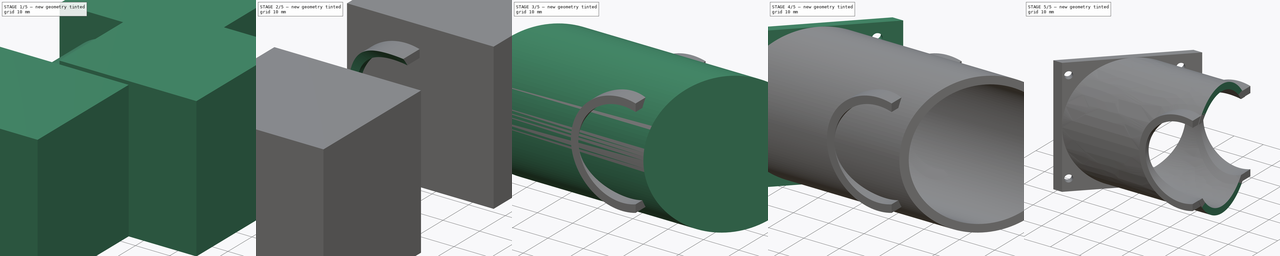
[diagram: build sequence overview — one tinted view per stage of 5, left to right]
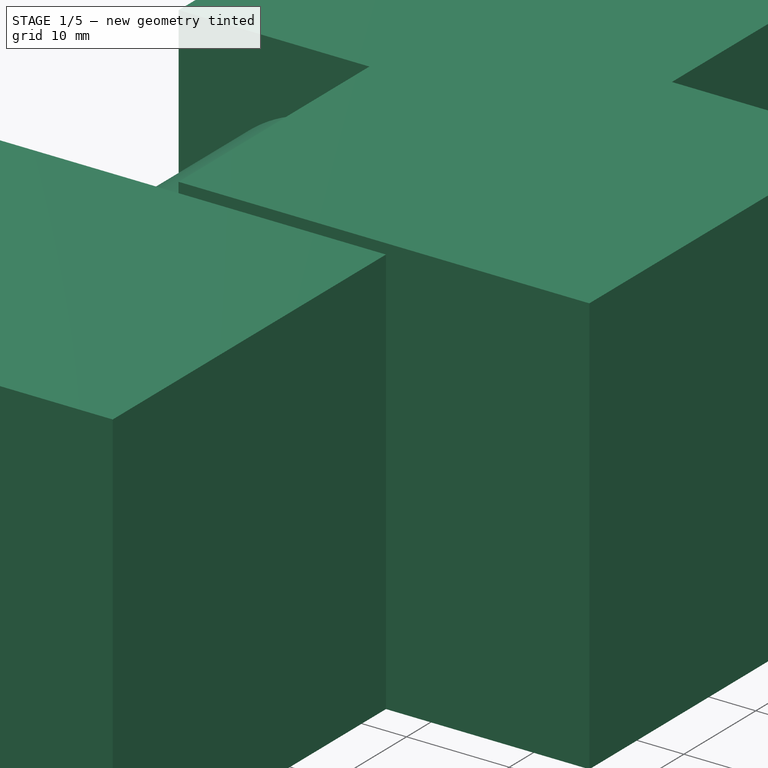
[diagram: stage 1 of 5 — iso view after this stage's code; geometry added in this stage tinted green]
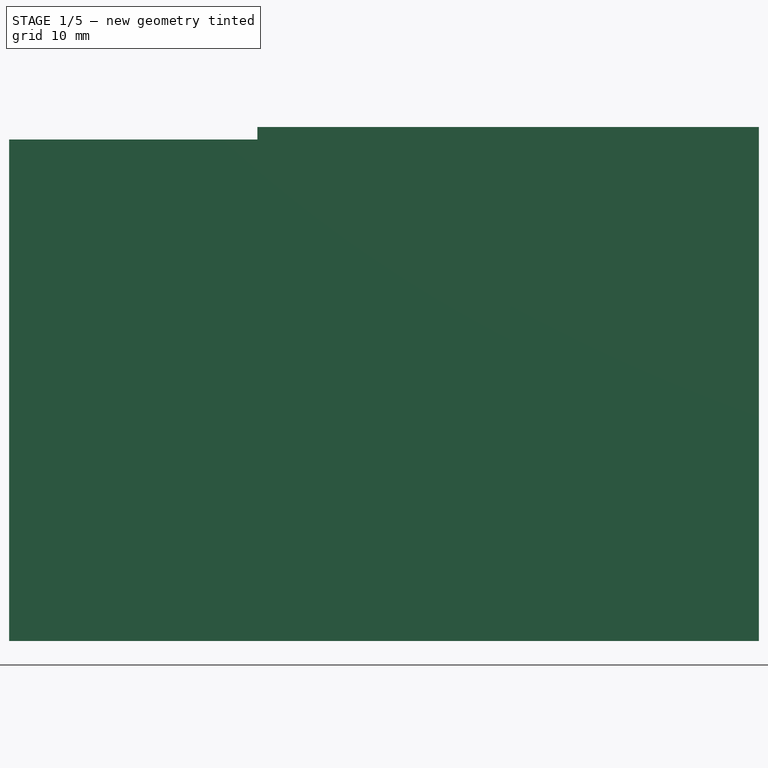
[diagram: stage 1 of 5 — front view after this stage's code; geometry added in this stage tinted green]
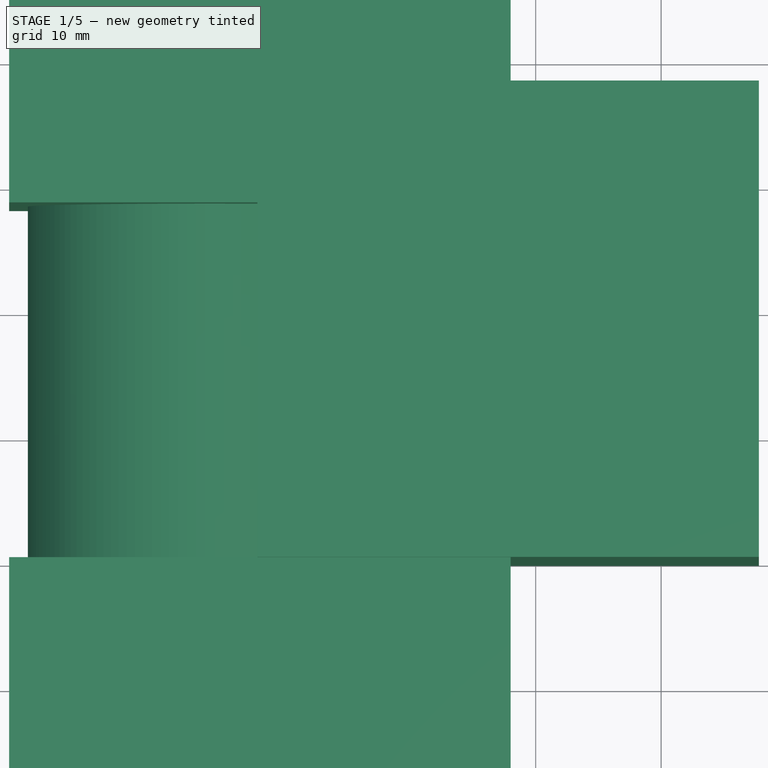
[diagram: stage 1 of 5 — top view after this stage's code; geometry added in this stage tinted green]
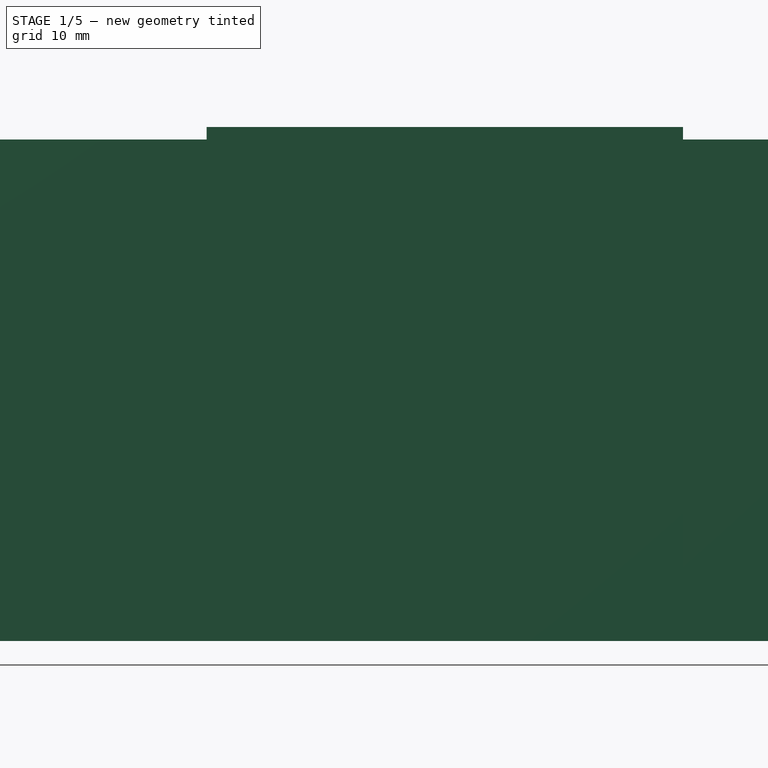
[diagram: stage 1 of 5 — right view after this stage's code; geometry added in this stage tinted green]
FCSTD DOCUMENT  (FreeCAD 0.14R3702 (Git))
Label: uchwyt-wentylator-v2
License: CC-BY 3.0
LicenseURL: http://creativecommons.org/licenses/by/3.0/
objects: Part::Cut×9, Part::Extrusion×8, Sketcher::SketchObject×4, Part::Box×4, Part::Cylinder×3, Part::MultiFuse×3
note: 31 computed .brp shape members not serialized (recipe doc carries the construction recipe); baked Part::Feature solids carry a one-line shape summary decoded from their .brp

FEATURE [Part::Cylinder] Cylinder002
  Angle = 360
  Height = 50
  Placement = pos=(44,38,20) rot=(1,0,0;1.5708rad)
  Radius = 14.5
FEATURE [Part::Box] Box001  label="Kostka001"
  Height = 41
  Length = 40
  Placement = pos=(47.8,0,0) rot=(0,0,1;0rad)
  Width = 38
FEATURE [Part::Box] Box002  label="Kostka002"
  Height = 40
  Length = 40
  Placement = pos=(28,-38,0) rot=(0,0,1;0rad)
  Width = 38
FEATURE [Part::Box] Box003  label="Kostka003"
  Height = 40
  Length = 40
  Placement = pos=(28,28.3,0) rot=(0,0,1;0rad)
  Width = 38
FEATURE [Part::MultiFuse] Fusion001
  Shapes = -> [Box002,Box003]
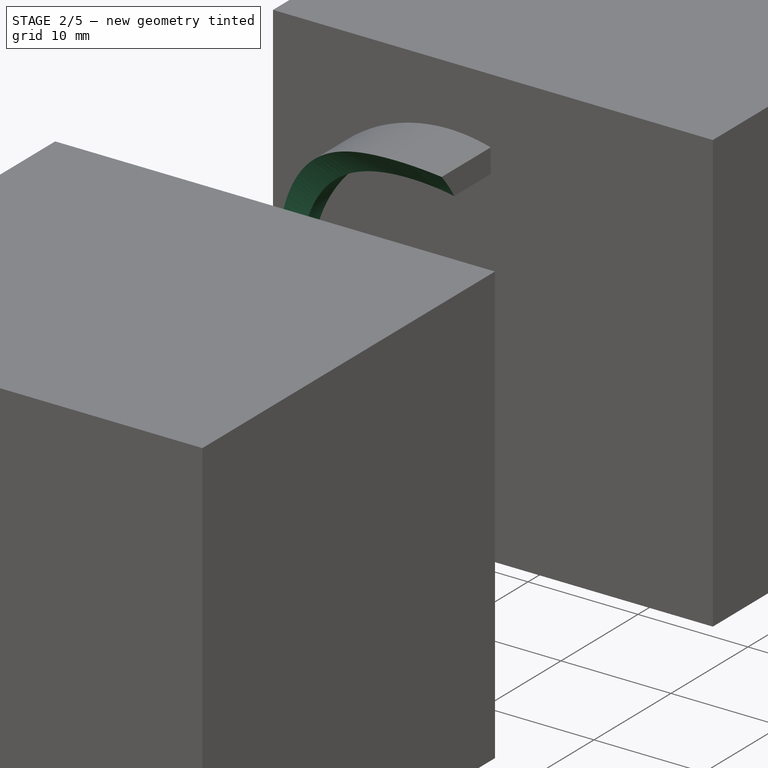
[diagram: stage 2 of 5 — iso view after this stage's code; geometry added in this stage tinted green]
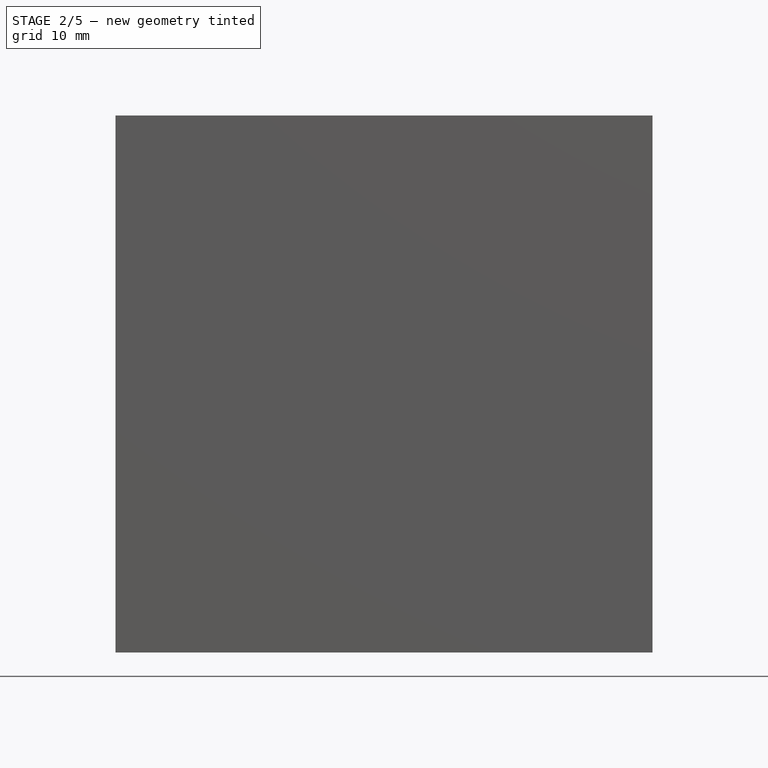
[diagram: stage 2 of 5 — front view after this stage's code; geometry added in this stage tinted green]
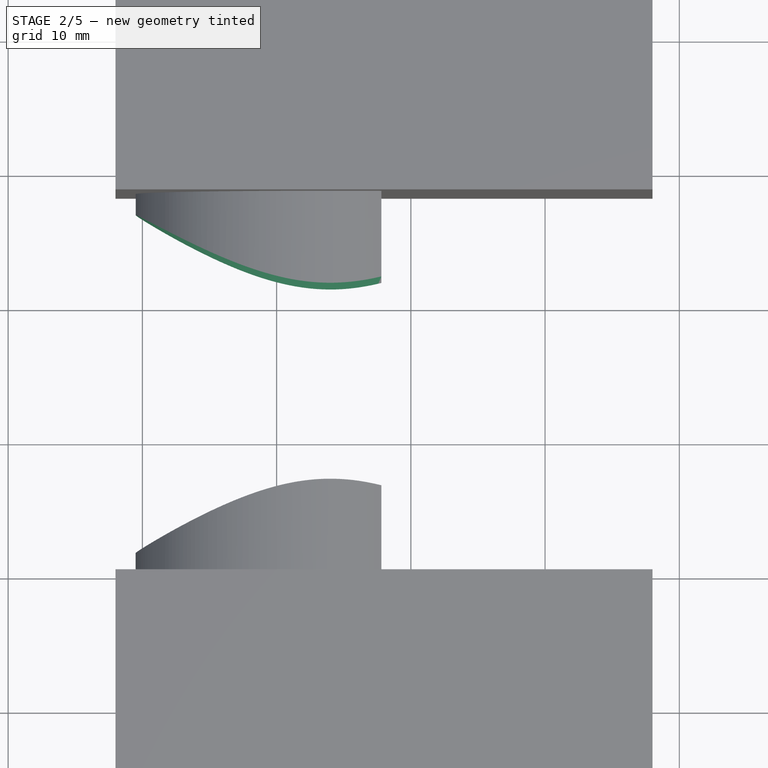
[diagram: stage 2 of 5 — top view after this stage's code; geometry added in this stage tinted green]
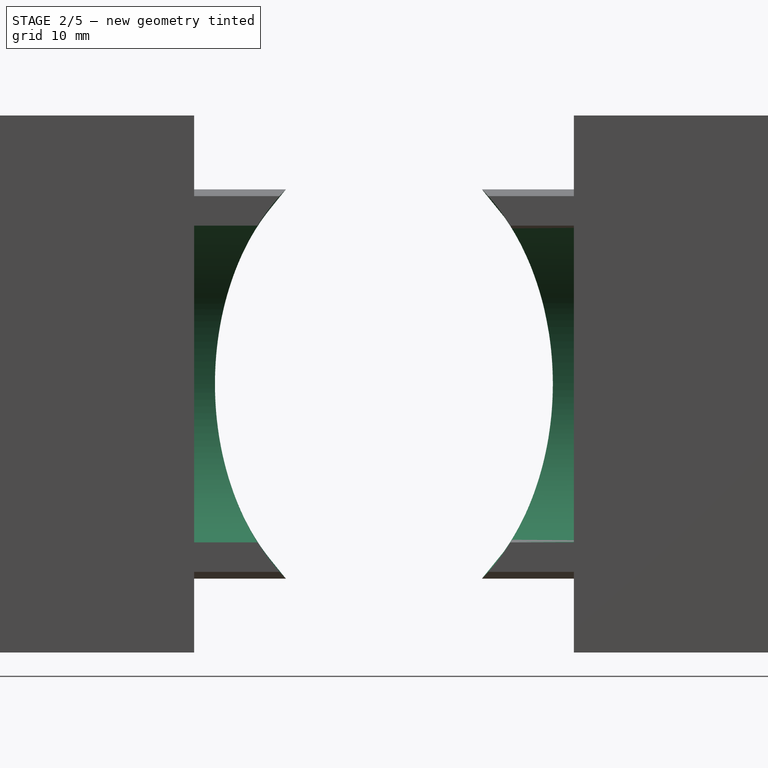
[diagram: stage 2 of 5 — right view after this stage's code; geometry added in this stage tinted green]
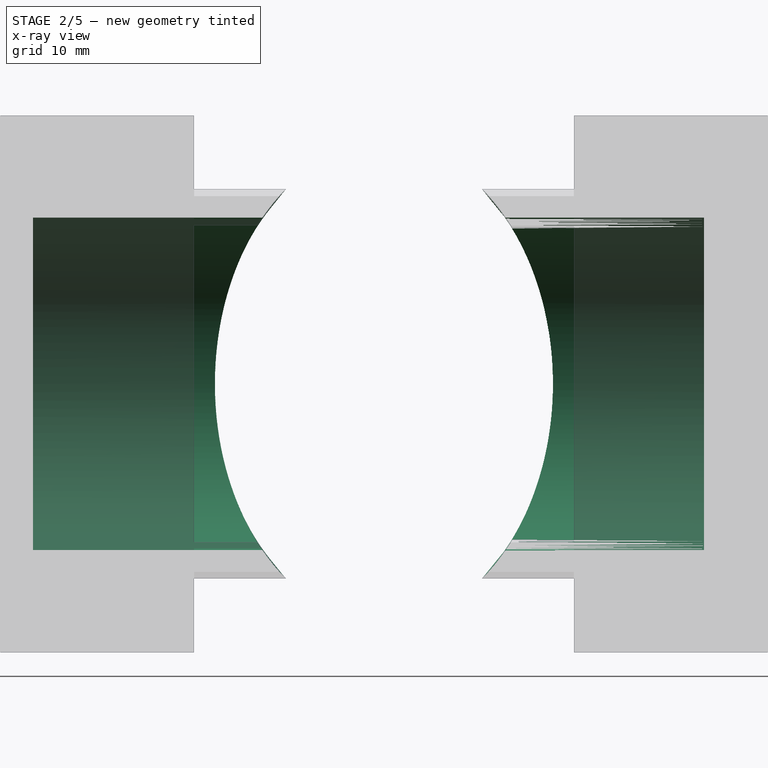
[diagram: stage 2 of 5 — x-ray composite at the right view; earlier geometry ghosted, this stage's added geometry solid]
FEATURE [Part::Extrusion] Extrude
  Dir = (0,0,40)
  Solid = true
FEATURE [Part::Cylinder] Cylinder001
  Angle = 360
  Height = 50
  Placement = pos=(44,38,20) rot=(1,0,0;1.5708rad)
  Radius = 12.4
FEATURE [Part::Cut] Cut005
  Base = -> Cylinder002
  Tool = -> Cylinder001
FEATURE [Part::Extrusion] Extrude008
  Base = -> Sketch
  Dir = (50,0,0)
  Solid = true
FEATURE [Part::Cut] Cut006
  Base = -> Cut005
  Tool = -> Box001
FEATURE [Part::Cut] Cut007
  Base = -> Cut006
  Tool = -> Extrude008
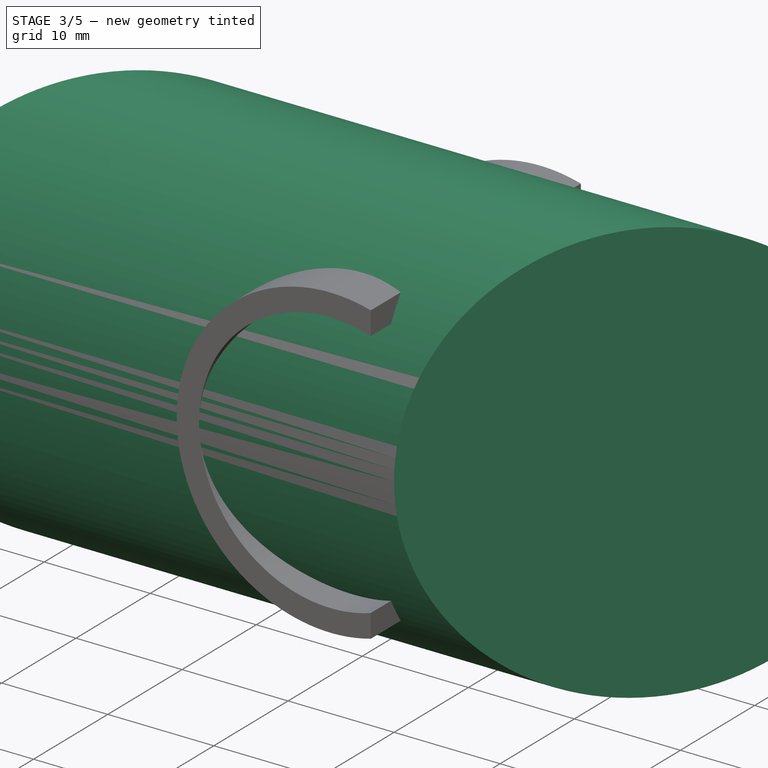
[diagram: stage 3 of 5 — iso view after this stage's code; geometry added in this stage tinted green]
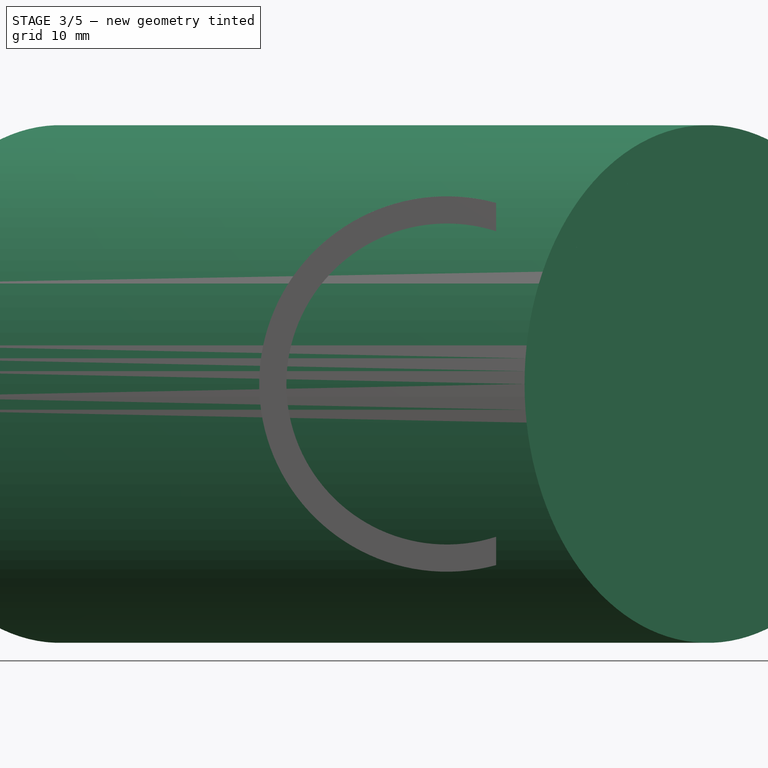
[diagram: stage 3 of 5 — front view after this stage's code; geometry added in this stage tinted green]
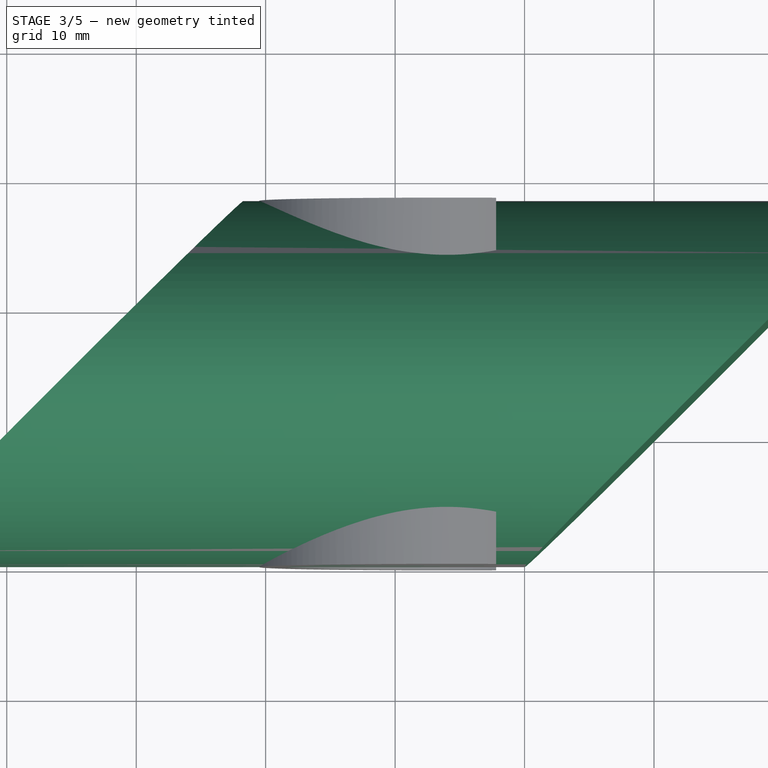
[diagram: stage 3 of 5 — top view after this stage's code; geometry added in this stage tinted green]
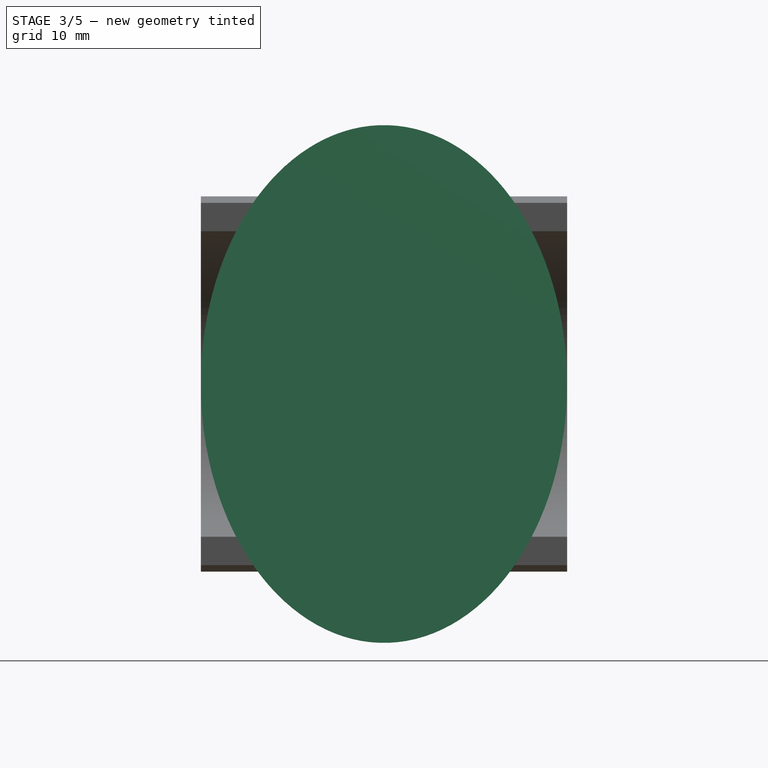
[diagram: stage 3 of 5 — right view after this stage's code; geometry added in this stage tinted green]
FEATURE [Sketcher::SketchObject] Sketch
  Placement = pos=(0,0,0) rot=(-0.281085,0.678598,0.678598;3.68962rad)
  Support = -> Extrude [Face3]
  sketch-geometry (1):
    g0: Circle CenterX=-20 CenterY=20 CenterZ=0 NormalX=0 NormalY=0 NormalZ=1 Radius=17.8
  constraints (3):
    c: DistanceX(g-1,g0) = -20
    c: DistanceY(g-1,g0) = 20
    c: Radius(g0) = 17.8
FEATURE [Part::Extrusion] Extrude001
  Base = -> Sketch
  Dir = (50,0,0)
  Solid = true
FEATURE [Part::Extrusion] Extrude006
  Base = -> Sketch
  Dir = (50,0,0)
  Solid = true
FEATURE [Sketcher::SketchObject] Sketch003
  Placement = pos=(0,0,0) rot=(-0.281085,0.678598,0.678598;3.68962rad)
  Support = -> Extrude006 [Face2]
  sketch-geometry (1):
    g0: Circle CenterX=-20 CenterY=20 CenterZ=0 NormalX=0 NormalY=0 NormalZ=1 Radius=20
  constraints (3):
    c: DistanceY(g-1,g0) = 20
    c: DistanceX(g-1,g0) = -20
    c: Radius(g0) = 20
FEATURE [Part::Extrusion] Extrude007
  Base = -> Sketch003
  Dir = (50,0,0)
  Solid = true
FEATURE [Part::Cut] Cut002
  Base = -> Extrude007
  Tool = -> Extrude006
FEATURE [Part::Cut] Cut008
  Base = -> Cut007
  Tool = -> Fusion001
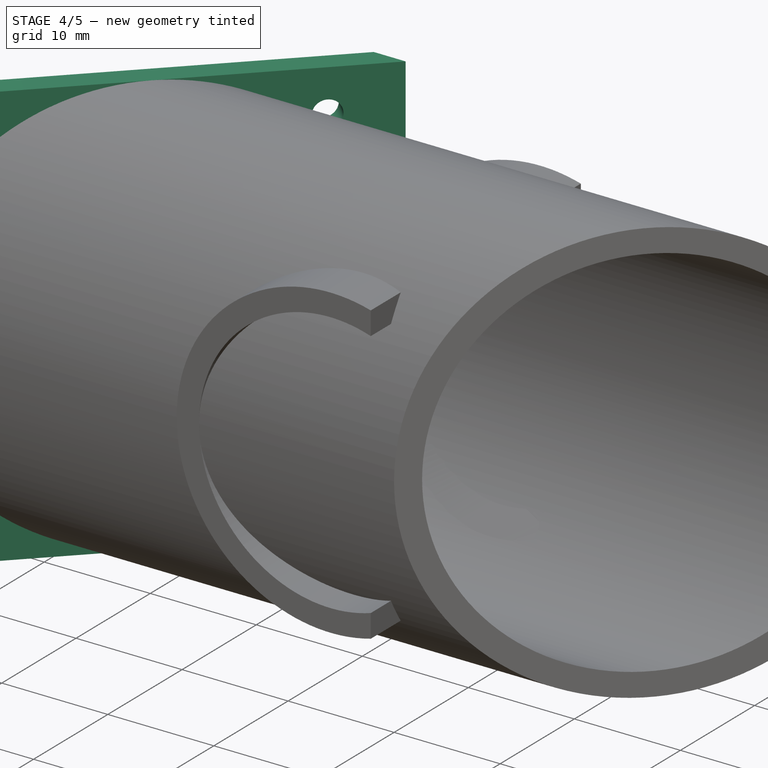
[diagram: stage 4 of 5 — iso view after this stage's code; geometry added in this stage tinted green]
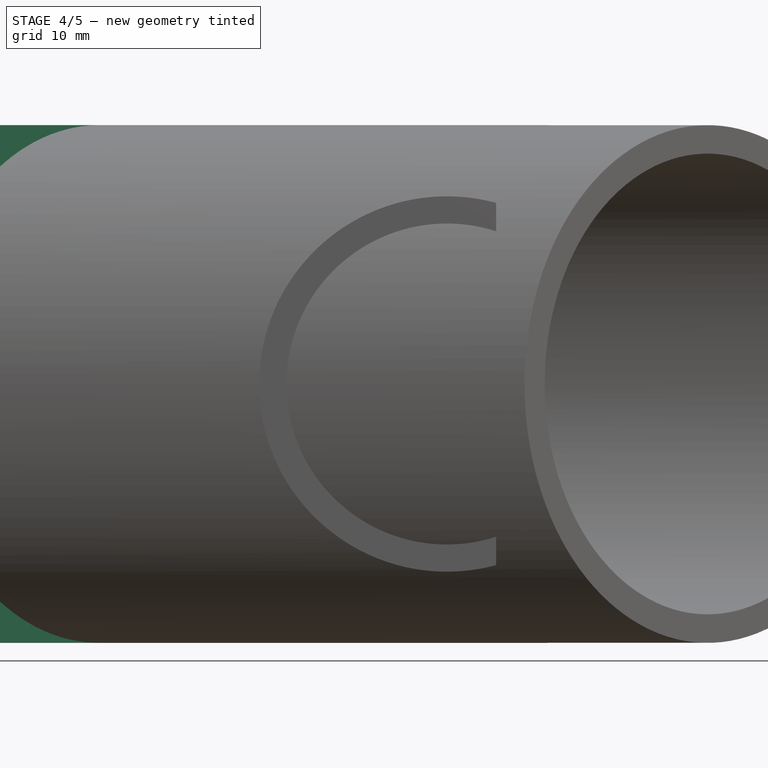
[diagram: stage 4 of 5 — front view after this stage's code; geometry added in this stage tinted green]
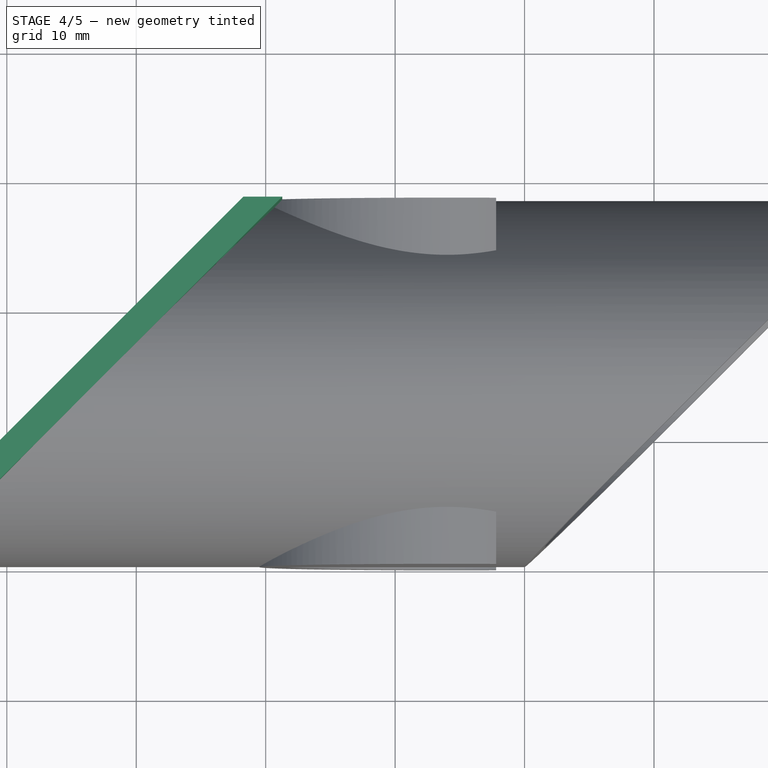
[diagram: stage 4 of 5 — top view after this stage's code; geometry added in this stage tinted green]
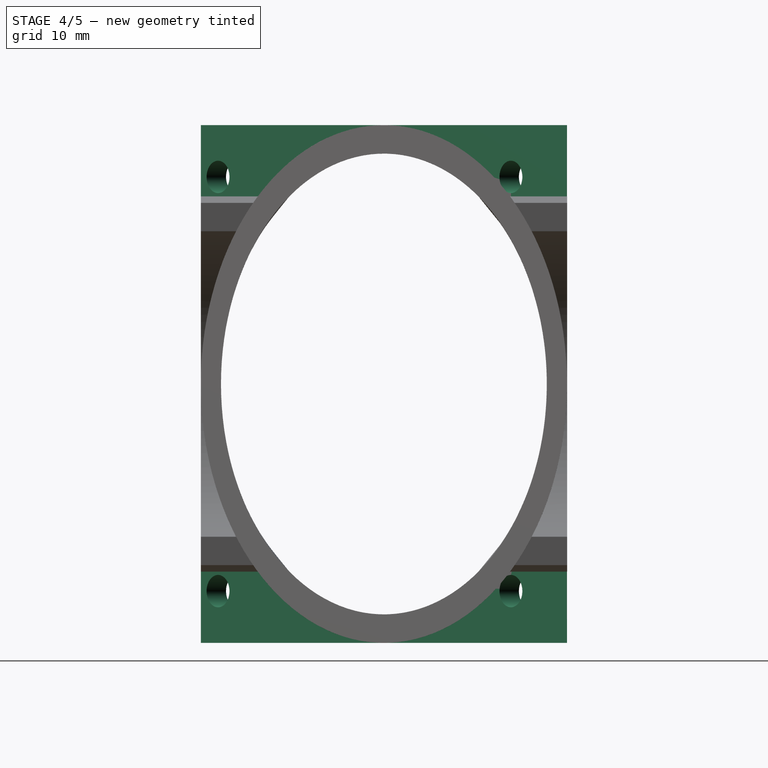
[diagram: stage 4 of 5 — right view after this stage's code; geometry added in this stage tinted green]
FEATURE [Part::Extrusion] Extrude002
  Dir = (0,0,40)
  Solid = true
FEATURE [Sketcher::SketchObject] Sketch001
  Placement = pos=(0,0,0) rot=(-0.281085,0.678598,0.678598;3.68962rad)
  Support = -> Extrude002 [Face3]
  sketch-geometry (4):
    g0: Circle CenterX=-36 CenterY=36 CenterZ=0 NormalX=0 NormalY=0 NormalZ=1 Radius=1.25
    g1: Circle CenterX=-4 CenterY=36 CenterZ=0 NormalX=0 NormalY=0 NormalZ=1 Radius=1.25
    g2: Circle CenterX=-4 CenterY=4 CenterZ=0 NormalX=0 NormalY=0 NormalZ=1 Radius=1.25
    g3: Circle CenterX=-36 CenterY=4 CenterZ=0 NormalX=0 NormalY=0 NormalZ=1 Radius=1.25
  constraints (12):
    c: Radius(g0) = 1.25
    c: DistanceY(g0) = 36
    c: DistanceX(g-1,g0) = -36
    c: DistanceX(g0,g1) = 32
    c: DistanceY(g-1,g1) = 36
    c: Radius(g1) = 1.25
    c: DistanceX(g-1,g2) = -4
    c: Radius(g2) = 1.25
    c: DistanceY(g-1,g2) = 4
    c: Radius(g3) = 1.25
    c: DistanceX(g3) = -36
    c: DistanceY(g-1,g3) = 4
FEATURE [Part::Extrusion] Extrude003
  Base = -> Sketch001
  Dir = (3,-3,0)
  Solid = true
FEATURE [Sketcher::SketchObject] Sketch002
  Placement = pos=(0,0,0) rot=(-0.281085,0.678598,0.678598;3.68962rad)
  Support = -> Extrude001 [Face2]
  sketch-geometry (4):
    g0: LineSegment StartX=0 StartY=0 StartZ=0 EndX=0 EndY=40 EndZ=0
    g1: LineSegment StartX=0 StartY=40 StartZ=0 EndX=-40 EndY=40 EndZ=0
    g2: LineSegment StartX=-40 StartY=40 StartZ=0 EndX=-40 EndY=0 EndZ=0
    g3: LineSegment StartX=-40 StartY=0 StartZ=0 EndX=0 EndY=0 EndZ=0
  constraints (11):
    c: Coincident(g0,g-1)
    c: Vertical(g0)
    c: Coincident(g1,g0)
    c: Horizontal(g1)
    c: DistanceY(g0) = 40
    c: DistanceX(g1) = -40
    c: Coincident(g2,g1)
    c: Vertical(g2)
    c: Coincident(g3,g2)
    c: Coincident(g3,g-1)
    c: Horizontal(g3)
FEATURE [Part::Extrusion] Extrude005
  Base = -> Sketch002
  Dir = (3,0,0)
  Solid = true
FEATURE [Part::Cut] Cut
  Base = -> Extrude005
  Tool = -> Extrude003
FEATURE [Part::Cut] Cut001
  Base = -> Cut
  Tool = -> Extrude001
FEATURE [Part::MultiFuse] Fusion
  Shapes = -> [Cut001,Cut002]
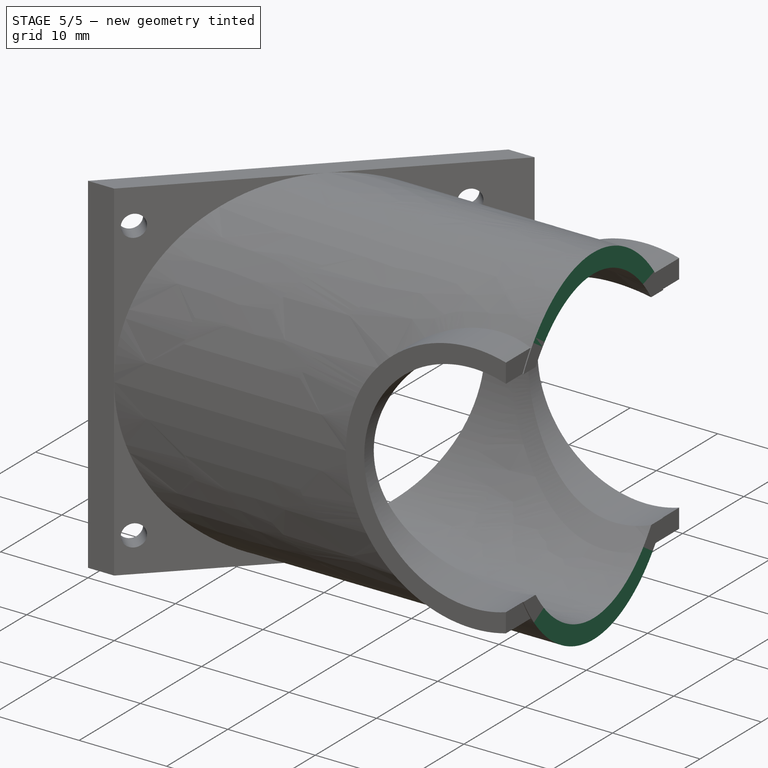
[diagram: stage 5 of 5 — iso view after this stage's code; geometry added in this stage tinted green]
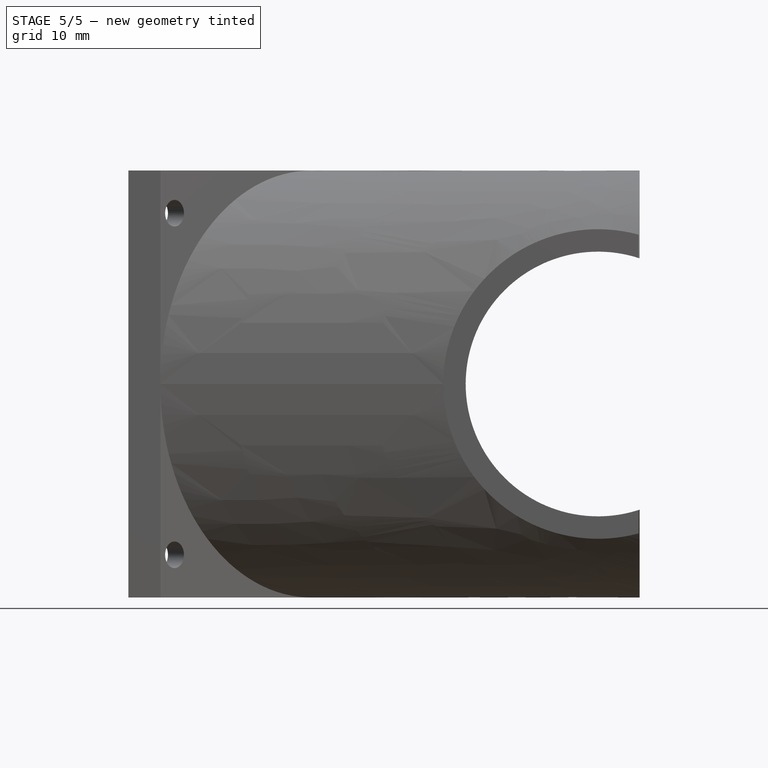
[diagram: stage 5 of 5 — front view after this stage's code; geometry added in this stage tinted green]
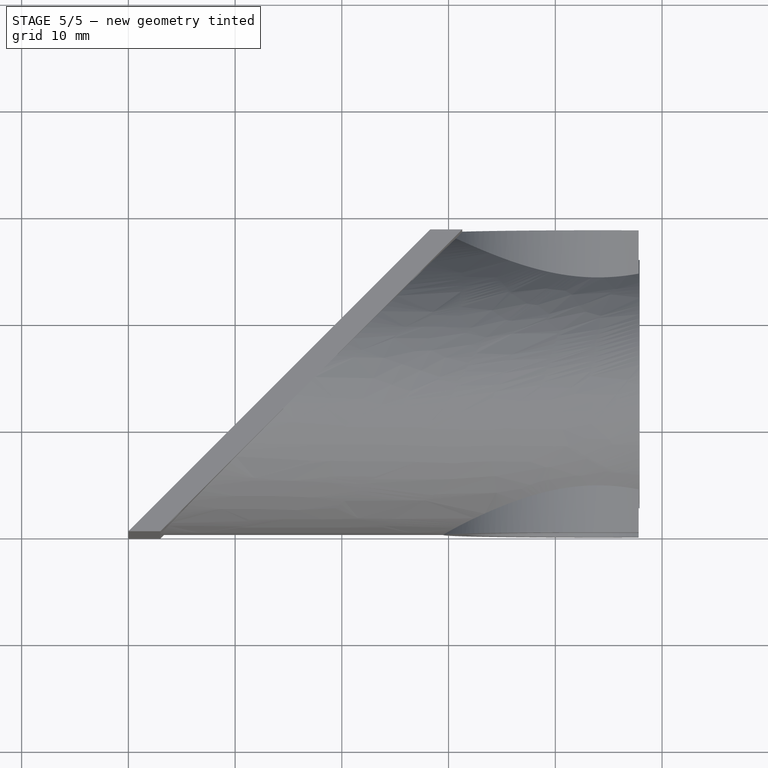
[diagram: stage 5 of 5 — top view after this stage's code; geometry added in this stage tinted green]
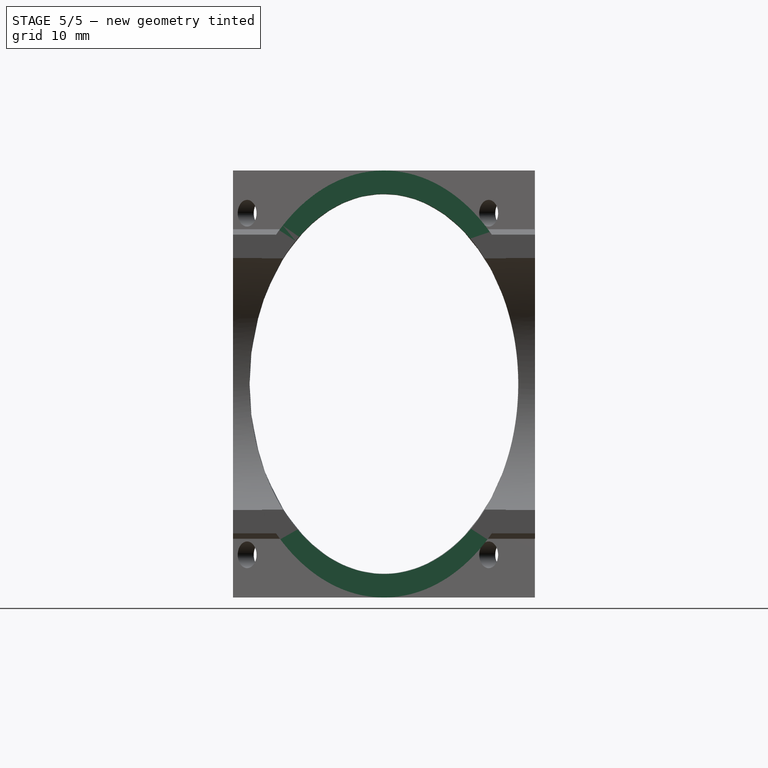
[diagram: stage 5 of 5 — right view after this stage's code; geometry added in this stage tinted green]
FEATURE [Part::Cylinder] Cylinder
  Angle = 360
  Height = 50
  Placement = pos=(44,38,20) rot=(1,0,0;1.5708rad)
  Radius = 12.4
FEATURE [Part::Box] Box  label="Kostka"
  Height = 42
  Length = 40
  Placement = pos=(47.9,0,-1) rot=(0,0,1;0rad)
  Width = 40
FEATURE [Part::Cut] Cut003
  Base = -> Fusion
  Tool = -> Box
FEATURE [Part::Cut] Cut004
  Base = -> Cut003
  Tool = -> Cylinder
FEATURE [Part::MultiFuse] Fusion002
  Shapes = -> [Cut008,Cut004]
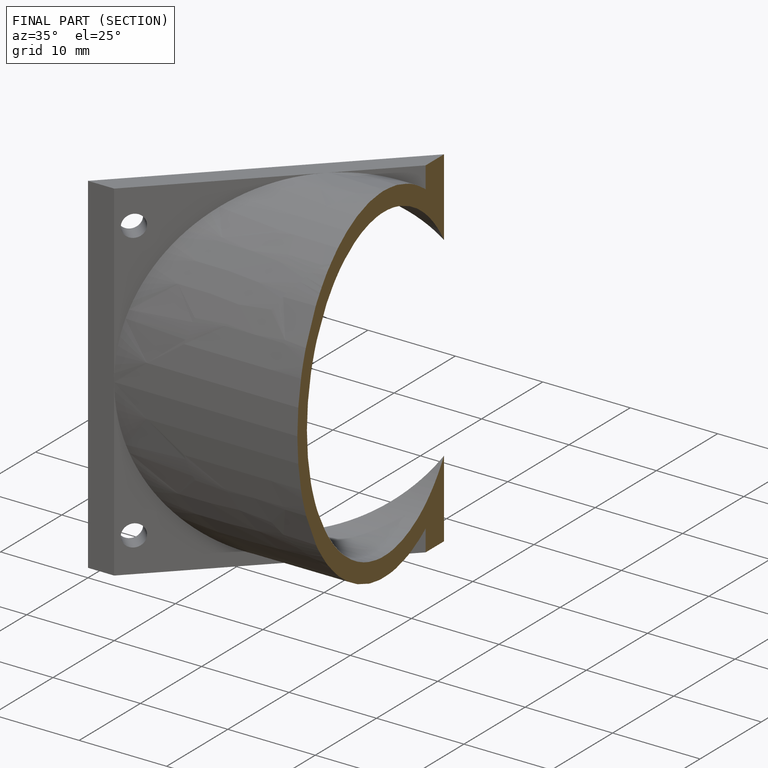
[diagram: finished part — half-section view (interior)]
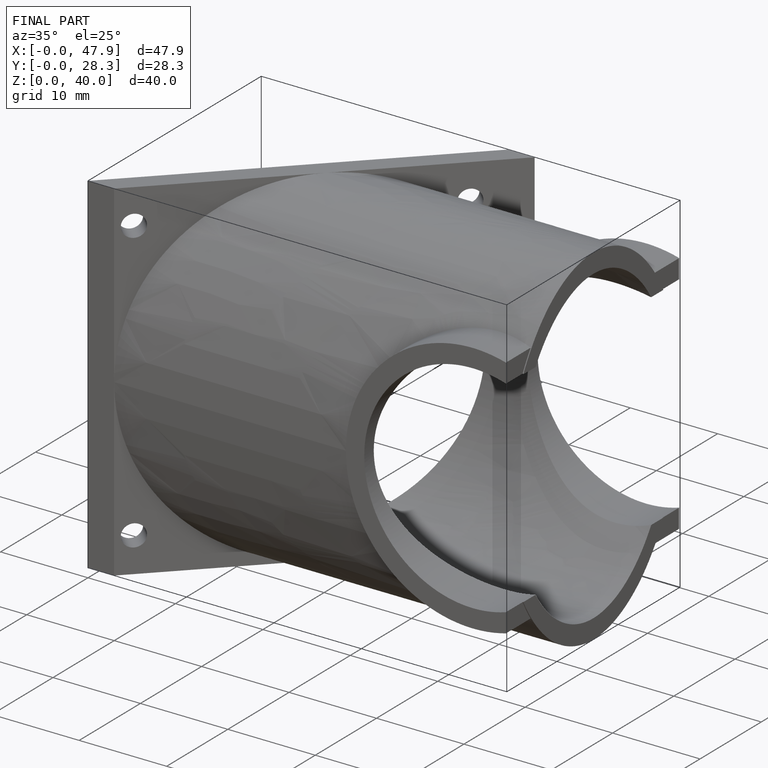
[diagram: finished part — iso view with bounding-box wireframe]
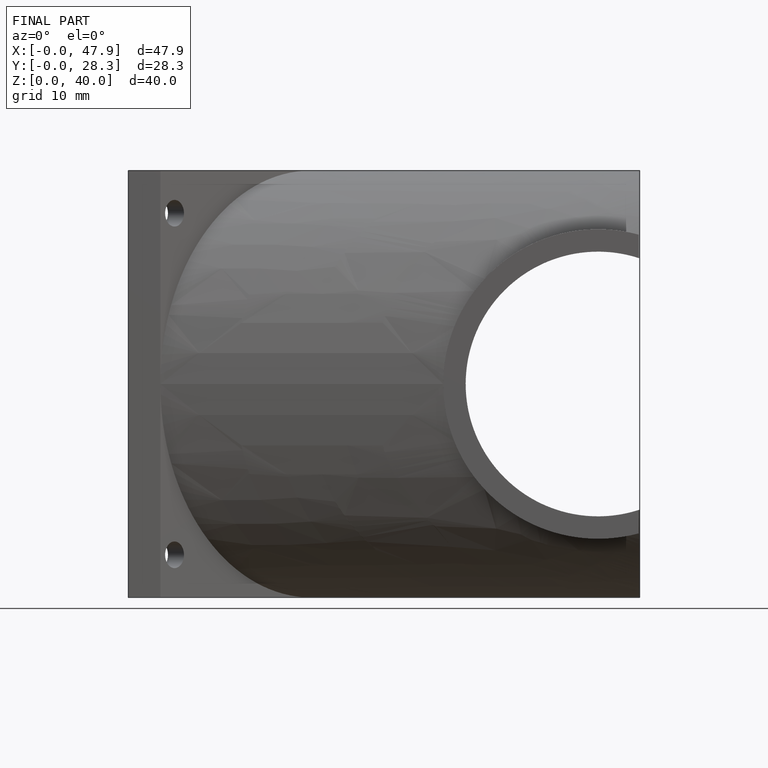
[diagram: finished part — front view with bounding-box wireframe]
